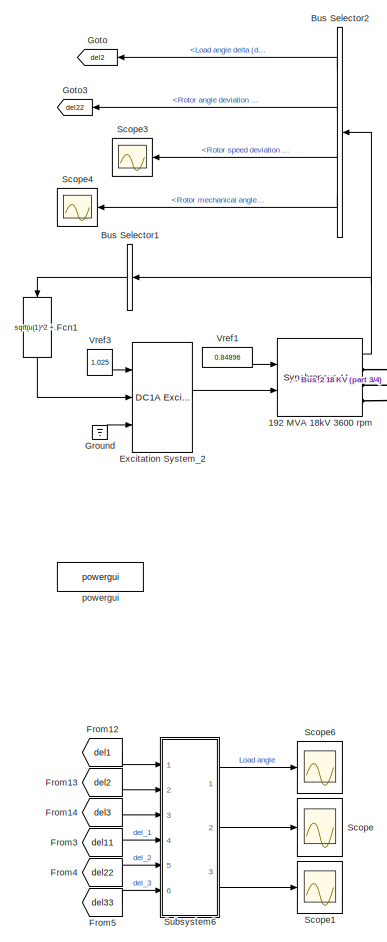
[diagram: root canvas - part 1/4, top left region]
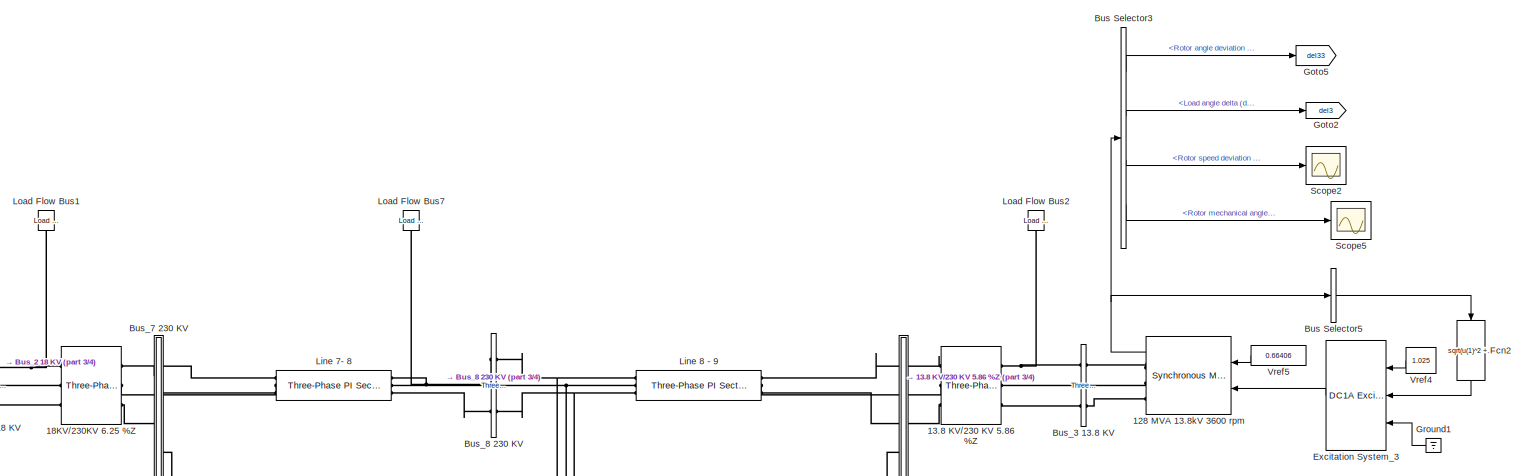
[diagram: root canvas - part 2/4, full width, top band]
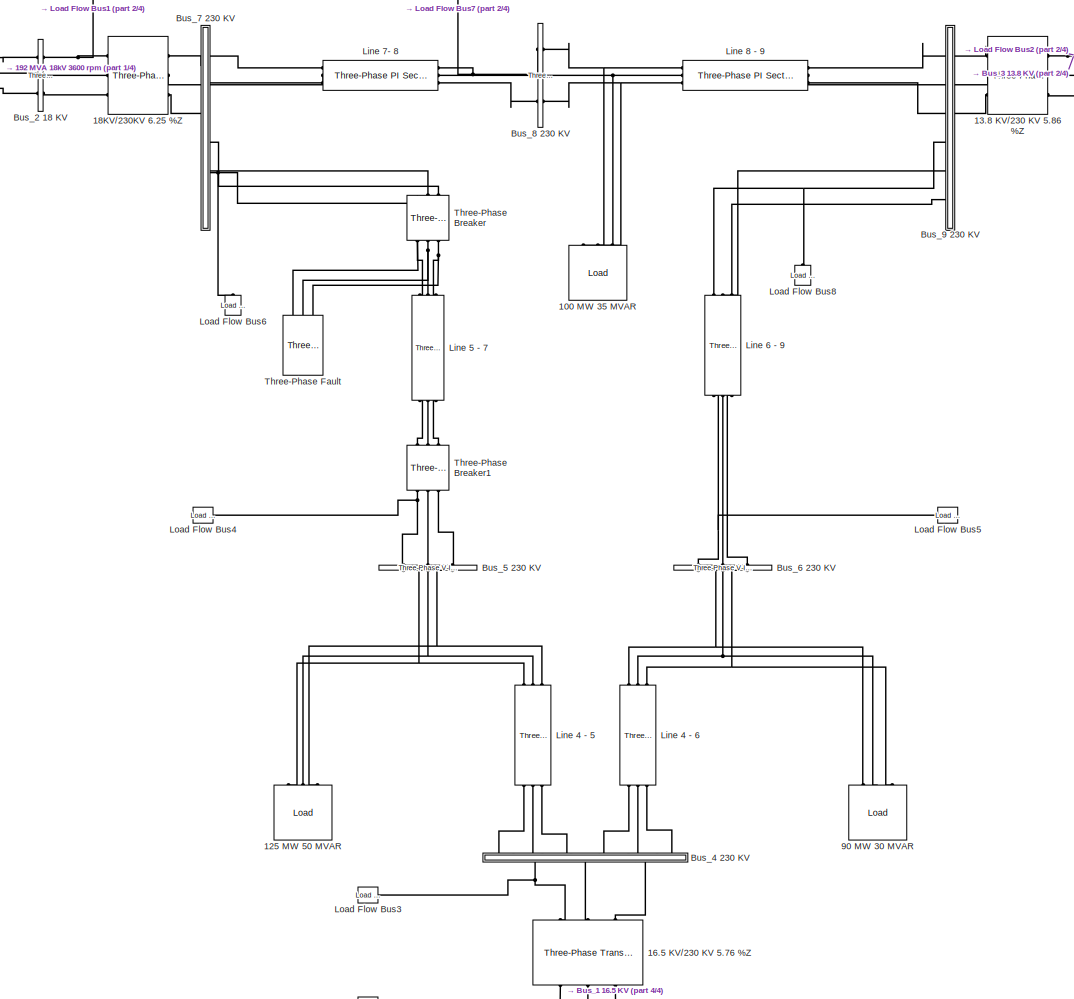
[diagram: root canvas - part 3/4, central region]
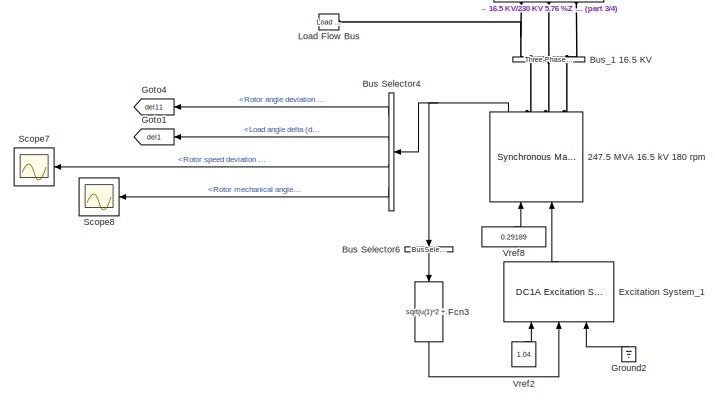
[diagram: root canvas - part 4/4, bottom center region]
MODEL slx_e1e0a8d0ff72
KIND model
CONFIG PreLoadFcn = ct = 1.083
BLOCK [Reference]  Line 4 - 6  REF=powerlib/Elements/Three-Phase
PI Section Line
  AttributesFormatString = \n
  Capacitances = [7.922e-9 4.74e-9]
  Frequency = 60
  Inductances = [ 1.29e-3  3.22e-3]
  LConnTagsString = a|b|c
  Length = 100
  Ports = [0, 0, 0, 0, 0, 3, 3]
  RConnTagsString = A|B|C
  Resistances = [ 0.08993 0.224825]
  SourceBlock = powerlib/Elements/Three-Phase\nPI Section Line
  SourceType = Three-Phase PI Section Line
BLOCK [Reference]  Line 6 - 9  REF=powerlib/Elements/Three-Phase
PI Section Line
  AttributesFormatString = \n
  Capacitances = [17.95e-9 10.55e-9]
  Frequency = 60
  Inductances = [ 2.38e-3  6.09e-3]
  LConnTagsString = a|b|c
  Length = 100
  Ports = [0, 0, 0, 0, 0, 3, 3]
  RConnTagsString = A|B|C
  Resistances = [ 0.20631 0.5157]
  SourceBlock = powerlib/Elements/Three-Phase\nPI Section Line
  SourceType = Three-Phase PI Section Line
BLOCK [Reference] 100 MW 35 MVAR  REF=jailib/Load  (lib defined in slx_75b92f426bfb)
  FunctionWithSeparateData = off
  GeneratePreprocessorConditionals = off
  Ports = [0, 0, 0, 0, 0, 3]
  ShowPortLabels = FromPortBlockName
  SourceBlock = jailib/Load
  SystemSampleTime = -1
BLOCK [Reference] 125 MW 50 MVAR  REF=jailib/Load  (lib defined in slx_75b92f426bfb)
  FunctionWithSeparateData = off
  GeneratePreprocessorConditionals = off
  Ports = [0, 0, 0, 0, 0, 3]
  ShowPortLabels = FromPortBlockName
  SourceBlock = jailib/Load
  SystemSampleTime = -1
BLOCK [Reference] 128 MVA 13.8kV 3600 rpm  REF=powerlib/Machines/Synchronous Machine
pu Standard
  BusType = PV
  InitialConditions = [0 -36.0034 0.653061 0.653061 0.653061 11.785 -108.215 131.785 1.40359]
  IterativeModel = Trapezoidal non iterative
  LoadFlowParameters = [1 85000000 0 0 0]
  Mechanical = [ 2.35  0 1 ]
  MechanicalLoad = Mechanical power Pm
  NominalParameters = [ 128e6  13.8e3   60 ]
  PLF = 0
  PolePairs = 1
  Ports = [2, 1, 0, 0, 0, 0, 3]
  Pref = 85000000
  PresetModel = No
  QLF = 0
  Qmax = Inf
  Qmin = -Inf
  Qref = 0
  Reactances1 = [ 1.68, 0.23206, 0.19, 1.61, 0.23206, 0.19, 0.314]
  Reactances2 = [ 1.305, 0.296, 0.252, 0.474,  0.243,  0.18 ]
  RotorType = Round
  Saturation = [0.6404,0.7127,0.8441,0.9214,0.9956,1.082,1.19,1.316,1.457;0.7,0.7698,0.8872,0.9466,0.9969,1.046,1.1,1.151,1.201]
  SetSaturation = off
  ShowDetailedParameters = on
  SourceBlock = powerlib/Machines/Synchronous Machine\npu Standard
  SourceType = Synchronous Machine
  StatorResistance = 1e-7
  TimeConstants1 = [ 4.4849  0.0681  0.1  ]
  TimeConstants2 = [ 5.89, 0.001,0.6, 0.001 ]
  TimeConstants3 = [  4.49  0.0681  0.0513  ]
  TimeConstants4 = [ 8.0, 0.03, 0.3371, 0.0295 ]
  TimeConstants5 = [ 1.01, 0.053, 0.1 ]
  TimeConstants6 = [ 1.3201, 0.023, 1.0, 0.07 ]
  TimeConstants7 = [  1.01  0.053  0.051266  ]
  TimeConstants8 = [ 1.3201, 0.0231, 0.3371, 0.0295 ]
  TsBlock = -1
  TsPowergui = 0
  Units = per unit standard parameters
  dAxisTimeConstants = Open-circuit
  qAxisTimeConstants = Open-circuit
BLOCK [Reference] 13.8 KV//230 KV 5.86 %Z  REF=powerlib/Elements/Three-Phase
Transformer
(Two Windings)
  BreakLoop = off
  DataFile = 'hysteresis'
  DataType = off
  Hysteresis = off
  InitialFluxes = [ 0.8 , -0.8 , 0.7 ]
  Lm = 500
  Measurements = None
  MoreParameters = off
  NominalPower = [ 100e6 , 60 ]
  Ports = [0, 0, 0, 0, 0, 3, 3]
  Rm = 500
  Saturation = [ 0,0 ; 0.0024,1.2 ; 1.0,1.52 ]
  SetInitialFlux = off
  SetSaturation = off
  SourceBlock = powerlib/Elements/Three-Phase\nTransformer\n(Two Windings)
  SourceType = Three-Phase Transformer (Two Windings)
  TransfoNumber = 1
  UNITS = pu
  Winding1 = [ 13.8e3 , 1e-6 , 0 ]
  Winding1Connection = Delta (D1)
  Winding2 = [ 230e3 , 1e-6, 0.0586 ]
  Winding2Connection = Yg
BLOCK [Reference] 16.5 KV//230 KV 5.76 %Z       REF=powerlib/Elements/Three-Phase
Transformer
(Two Windings)
  BreakLoop = off
  DataFile = 'hysteresis'
  DataType = off
  Hysteresis = off
  InitialFluxes = [ 0.8 , -0.8 , 0.7 ]
  Lm = 500
  Measurements = None
  MoreParameters = off
  NominalPower = [ 100e6 , 60 ]
  Ports = [0, 0, 0, 0, 0, 3, 3]
  Rm = 500
  Saturation = [ 0,0 ; 0.0024,1.2 ; 1.0,1.52 ]
  SetInitialFlux = off
  SetSaturation = off
  SourceBlock = powerlib/Elements/Three-Phase\nTransformer\n(Two Windings)
  SourceType = Three-Phase Transformer (Two Windings)
  TransfoNumber = 1
  UNITS = pu
  Winding1 = [ 16.5e3 , 1e-6, 0 ]
  Winding1Connection = Delta (D1)
  Winding2 = [ 230e3 ,1e-6, 0.0576 ]
  Winding2Connection = Yg
BLOCK [Reference] 18KV//230KV 6.25 %Z  REF=powerlib/Elements/Three-Phase
Transformer
(Two Windings)
  BreakLoop = off
  DataFile = 'hysteresis'
  DataType = off
  Hysteresis = off
  InitialFluxes = [ 0.8 , -0.8 , 0.7 ]
  Lm = 500
  Measurements = None
  MoreParameters = off
  NominalPower = [ 100e6 , 60 ]
  Ports = [0, 0, 0, 0, 0, 3, 3]
  Rm = 500
  Saturation = [ 0,0 ; 0.0024,1.2 ; 1.0,1.52 ]
  SetInitialFlux = off
  SetSaturation = off
  SourceBlock = powerlib/Elements/Three-Phase\nTransformer\n(Two Windings)
  SourceType = Three-Phase Transformer (Two Windings)
  TransfoNumber = 1
  UNITS = pu
  Winding1 = [ 18e3 , 1e-6 , 0]
  Winding1Connection = Delta (D1)
  Winding2 = [ 230e3 , 1e-6, 0.0625 ]
  Winding2Connection = Yg
BLOCK [Reference] 192 MVA 18kV 3600 rpm  REF=powerlib/Machines/Synchronous Machine
pu Standard
  BusType = PV
  InitialConditions = [0 -29.1799 0.828949 0.828949 0.828949 6.81655 -113.183 126.817 1.78946]
  IterativeModel = Trapezoidal non iterative
  LoadFlowParameters = [1 163000000 0 0 0]
  Mechanical = [ 3.33  0 1 ]
  MechanicalLoad = Mechanical power Pm
  NominalParameters = [ 192e6  18e3   60 ]
  PLF = 0
  PolePairs = 1
  Ports = [2, 1, 0, 0, 0, 0, 3]
  Pref = 163000000
  PresetModel = No
  QLF = 0
  Qmax = Inf
  Qmin = -Inf
  Qref = 0
  Reactances1 = [ 1.72, 0.23, 0.1728,1.65, 0.23, 0.1728, 0.4224 ]
  Reactances2 = [ 1.305, 0.296, 0.252, 0.474,  0.243,  0.18 ]
  RotorType = Round
  Saturation = [0.6404,0.7127,0.8441,0.9214,0.9956,1.082,1.19,1.316,1.457;0.7,0.7698,0.8872,0.9466,0.9969,1.046,1.1,1.151,1.201]
  SetSaturation = off
  ShowDetailedParameters = on
  SourceBlock = powerlib/Machines/Synchronous Machine\npu Standard
  SourceType = Synchronous Machine
  StatorResistance = 1e-7
  TimeConstants1 = [ 4.4849  0.0681  0.1  ]
  TimeConstants2 = [ 6, 0.001, 0.53, 0.001]
  TimeConstants3 = [  4.49  0.0681  0.0513  ]
  TimeConstants4 = [ 8.0, 0.03, 0.3371, 0.0295 ]
  TimeConstants5 = [ 1.01, 0.053, 0.1 ]
  TimeConstants6 = [ 1.3201, 0.023, 1.0, 0.07 ]
  TimeConstants7 = [  1.01  0.053  0.051266  ]
  TimeConstants8 = [ 1.3201, 0.0231, 0.3371, 0.0295 ]
  TsBlock = -1
  TsPowergui = 0
  Units = per unit standard parameters
  dAxisTimeConstants = Open-circuit
  qAxisTimeConstants = Open-circuit
BLOCK [Reference] 247.5 MVA 16.5 kV 180 rpm  REF=powerlib/Machines/Synchronous Machine
pu Standard
  AttributesFormatString = \n\n
  BusType = swing
  InitialConditions = [0 -86.3839 0.299344 0.299344 0.299344 -20.3492 -140.349 99.6508 1.08182]
  IterativeModel = Trapezoidal non iterative
  LoadFlowParameters = [2 71000000 0 0]
  Mechanical = [9.55 0 20]
  MechanicalLoad = Mechanical power Pm
  NominalParameters = [ 247.5E6  16500   60 ]
  PLF = 0
  PolePairs = 20
  Ports = [2, 1, 0, 0, 0, 0, 3]
  Pref = 150000000
  PresetModel = No
  QLF = 0
  Qmax = Inf
  Qmin = -Inf
  Qref = 0
  Reactances1 = [ 31 32 33 34 35 36 37 ]
  Reactances2 = [ 0.361, 0.1504, 0.099, 0.2398, 0.099, 0.062 ]
  RotorType = Salient-pole
  Saturation = [0.6404,0.7127,0.8441,0.9214,0.9956,1.082,1.19,1.316,1.457;0.7,0.7698,0.8872,0.9466,0.9969,1.046,1.1,1.151,1.201]
  SetSaturation = off
  ShowDetailedParameters = on
  SourceBlock = powerlib/Machines/Synchronous Machine\npu Standard
  SourceType = Synchronous Machine
  StatorResistance = 1e-7
  TimeConstants1 = [8.96 0.001 0.001]
  TimeConstants2 = []
  TimeConstants3 = []
  TimeConstants4 = []
  TimeConstants5 = [ 1.01, 0.053, 0.31 ]
  TimeConstants6 = []
  TimeConstants7 = []
  TimeConstants8 = []
  TsBlock = -1
  TsPowergui = 0
  Units = per unit standard parameters
  dAxisTimeConstants = Open-circuit
  qAxisTimeConstants = Open-circuit
BLOCK [Reference] 90 MW 30 MVAR  REF=jailib/Load  (lib defined in slx_75b92f426bfb)
  FunctionWithSeparateData = off
  GeneratePreprocessorConditionals = off
  Ports = [0, 0, 0, 0, 0, 3]
  ShowPortLabels = FromPortBlockName
  SourceBlock = jailib/Load
  SystemSampleTime = -1
BLOCK [BusSelector] Bus Selector1
  OutputAsBus = on
  OutputSignals = dq0 components.Stator voltage  vq (pu),dq0 components.Stator voltage  vd (pu)
  Ports = [1, 1]
BLOCK [BusSelector] Bus Selector2
  OutputSignals = Load angle   delta  (deg),Mechanical.Rotor angle deviation  d_theta (rad),Mechanical.Rotor speed deviation  dw (pu),Mechanical.Rotor mechanical angle  theta (deg)
  Ports = [1, 4]
BLOCK [BusSelector] Bus Selector3
  OutputSignals = Mechanical.Rotor angle deviation  d_theta (rad),Load angle   delta  (deg),Mechanical.Rotor speed deviation  dw (pu),Mechanical.Rotor mechanical angle  theta (deg)
  Ports = [1, 4]
BLOCK [BusSelector] Bus Selector4
  OutputSignals = Mechanical.Rotor angle deviation  d_theta (rad),Load angle   delta  (deg),Mechanical.Rotor speed deviation  dw (pu),Mechanical.Rotor mechanical angle  theta (deg)
  Ports = [1, 4]
BLOCK [BusSelector] Bus Selector5
  OutputAsBus = on
  OutputSignals = dq0 components.Stator voltage  vq (pu),dq0 components.Stator voltage  vd (pu)
  Ports = [1, 1]
BLOCK [BusSelector] Bus Selector6
  OutputAsBus = on
  OutputSignals = dq0 components.Stator voltage  vq (pu),dq0 components.Stator voltage  vd (pu)
  Ports = [1, 1]
BLOCK [Reference] Bus_1 16.5 KV  REF=powerlib/Measurements/Three-Phase
V-I Measurement
  CurrentMeasurement = yes
  Ipu = on
  LabelI = Iabc_1
  LabelV = Vabc_1
  OutputType = Complex
  PSBequivalent = 0
  Pbase = 100e6
  PhasorSimulation = off
  Ports = [0, 0, 0, 0, 0, 3, 3]
  SetLabelI = on
  SetLabelV = on
  SourceBlock = powerlib/Measurements/Three-Phase\nV-I Measurement
  SourceType = Three-Phase VI Measurement
  Vbase = 16.5e3
  VoltageMeasurement = phase-to-phase
  Vpu = on
  VpuLL = off
BLOCK [Reference] Bus_2 18 KV  REF=powerlib/Measurements/Three-Phase
V-I Measurement
  CurrentMeasurement = yes
  Ipu = on
  LabelI = Iabc_2
  LabelV = Vabc_2
  OutputType = Complex
  PSBequivalent = 0
  Pbase = 100e6
  PhasorSimulation = off
  Ports = [0, 0, 0, 0, 0, 3, 3]
  SetLabelI = on
  SetLabelV = on
  SourceBlock = powerlib/Measurements/Three-Phase\nV-I Measurement
  SourceType = Three-Phase VI Measurement
  Vbase = 18e3
  VoltageMeasurement = phase-to-phase
  Vpu = on
  VpuLL = off
BLOCK [Reference] Bus_3 13.8 KV  REF=powerlib/Measurements/Three-Phase
V-I Measurement
  CurrentMeasurement = yes
  Ipu = on
  LabelI = Iabc_3
  LabelV = Vabc_3
  OutputType = Complex
  PSBequivalent = 0
  Pbase = 100e6
  PhasorSimulation = off
  Ports = [0, 0, 0, 0, 0, 3, 3]
  SetLabelI = on
  SetLabelV = on
  SourceBlock = powerlib/Measurements/Three-Phase\nV-I Measurement
  SourceType = Three-Phase VI Measurement
  Vbase = 13.8e3
  VoltageMeasurement = phase-to-phase
  Vpu = on
  VpuLL = off
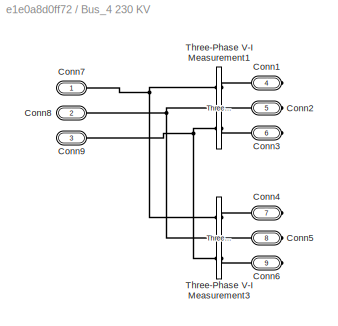
BLOCK [SubSystem] Bus_4 230 KV
  FunctionWithSeparateData = off
  MaskHideContents = off
  MinAlgLoopOccurrences = off
  Opaque = off
  Ports = [0, 0, 0, 0, 0, 3, 6]
  PropExecContextOutsideSubsystem = off
  RTWSystemCode = Auto
  RequestExecContextInheritance = off
BLOCK [PMIOPort] Bus_4 230 KV/Conn1
  Port = 4
  Side = Right
BLOCK [PMIOPort] Bus_4 230 KV/Conn2
  Port = 5
  Side = Right
BLOCK [PMIOPort] Bus_4 230 KV/Conn3
  Port = 6
  Side = Right
BLOCK [PMIOPort] Bus_4 230 KV/Conn4
  Port = 7
  Side = Right
BLOCK [PMIOPort] Bus_4 230 KV/Conn5
  Port = 8
  Side = Right
BLOCK [PMIOPort] Bus_4 230 KV/Conn6
  Port = 9
  Side = Right
BLOCK [PMIOPort] Bus_4 230 KV/Conn7
  Port = 1
  Side = Left
BLOCK [PMIOPort] Bus_4 230 KV/Conn8
  Port = 2
  Side = Left
BLOCK [PMIOPort] Bus_4 230 KV/Conn9
  Port = 3
  Side = Left
BLOCK [Reference] Bus_4 230 KV/Three-Phase V-I Measurement1  REF=powerlib/Measurements/Three-Phase
V-I Measurement
  CurrentMeasurement = yes
  Ipu = on
  LabelI = Iabc_45
  LabelV = Vabc_45
  OutputType = Complex
  PSBequivalent = 0
  Pbase = 100e6
  PhasorSimulation = off
  Ports = [0, 0, 0, 0, 0, 3, 3]
  SetLabelI = on
  SetLabelV = on
  SourceBlock = powerlib/Measurements/Three-Phase\nV-I Measurement
  SourceType = Three-Phase VI Measurement
  Vbase = 230e3
  VoltageMeasurement = phase-to-ground
  Vpu = on
  VpuLL = off
BLOCK [Reference] Bus_4 230 KV/Three-Phase V-I Measurement3  REF=powerlib/Measurements/Three-Phase
V-I Measurement
  CurrentMeasurement = yes
  Ipu = on
  LabelI = Iabc_46
  LabelV = Vabc_46
  OutputType = Complex
  PSBequivalent = 0
  Pbase = 100e6
  PhasorSimulation = off
  Ports = [0, 0, 0, 0, 0, 3, 3]
  SetLabelI = on
  SetLabelV = on
  SourceBlock = powerlib/Measurements/Three-Phase\nV-I Measurement
  SourceType = Three-Phase VI Measurement
  Vbase = 230e3
  VoltageMeasurement = phase-to-ground
  Vpu = on
  VpuLL = off
BLOCK [Reference] Bus_5 230 KV  REF=powerlib/Measurements/Three-Phase
V-I Measurement
  CurrentMeasurement = yes
  Ipu = on
  LabelI = Iabc_5
  LabelV = Vabc_5
  OutputType = Complex
  PSBequivalent = 0
  Pbase = 100e6
  PhasorSimulation = off
  Ports = [0, 0, 0, 0, 0, 3, 3]
  SetLabelI = on
  SetLabelV = on
  SourceBlock = powerlib/Measurements/Three-Phase\nV-I Measurement
  SourceType = Three-Phase VI Measurement
  Vbase = 230e3
  VoltageMeasurement = phase-to-ground
  Vpu = on
  VpuLL = off
BLOCK [Reference] Bus_6 230 KV  REF=powerlib/Measurements/Three-Phase
V-I Measurement
  CurrentMeasurement = yes
  Ipu = on
  LabelI = Iabc_6
  LabelV = Vabc_6
  OutputType = Complex
  PSBequivalent = 0
  Pbase = 100e6
  PhasorSimulation = off
  Ports = [0, 0, 0, 0, 0, 3, 3]
  SetLabelI = on
  SetLabelV = on
  SourceBlock = powerlib/Measurements/Three-Phase\nV-I Measurement
  SourceType = Three-Phase VI Measurement
  Vbase = 230e3
  VoltageMeasurement = phase-to-ground
  Vpu = on
  VpuLL = off
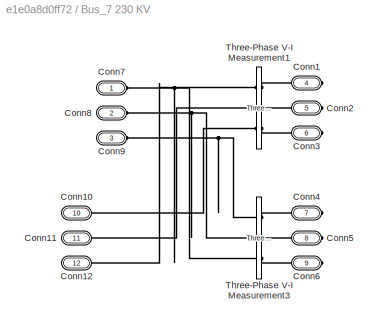
BLOCK [SubSystem] Bus_7 230 KV
  FunctionWithSeparateData = off
  MaskHideContents = off
  MinAlgLoopOccurrences = off
  Opaque = off
  Ports = [0, 0, 0, 0, 0, 6, 6]
  PropExecContextOutsideSubsystem = off
  RTWSystemCode = Auto
  RequestExecContextInheritance = off
BLOCK [PMIOPort] Bus_7 230 KV/Conn1
  Port = 4
  Side = Right
BLOCK [PMIOPort] Bus_7 230 KV/Conn10
  Port = 10
  Side = Left
BLOCK [PMIOPort] Bus_7 230 KV/Conn11
  Port = 11
  Side = Left
BLOCK [PMIOPort] Bus_7 230 KV/Conn12
  Port = 12
  Side = Left
BLOCK [PMIOPort] Bus_7 230 KV/Conn2
  Port = 5
  Side = Right
BLOCK [PMIOPort] Bus_7 230 KV/Conn3
  Port = 6
  Side = Right
BLOCK [PMIOPort] Bus_7 230 KV/Conn4
  Port = 7
  Side = Right
BLOCK [PMIOPort] Bus_7 230 KV/Conn5
  Port = 8
  Side = Right
BLOCK [PMIOPort] Bus_7 230 KV/Conn6
  Port = 9
  Side = Right
BLOCK [PMIOPort] Bus_7 230 KV/Conn7
  Port = 1
  Side = Left
BLOCK [PMIOPort] Bus_7 230 KV/Conn8
  Port = 2
  Side = Left
BLOCK [PMIOPort] Bus_7 230 KV/Conn9
  Port = 3
  Side = Left
BLOCK [Reference] Bus_7 230 KV/Three-Phase V-I Measurement1  REF=powerlib/Measurements/Three-Phase
V-I Measurement
  CurrentMeasurement = yes
  Ipu = on
  LabelI = Iabc_7
  LabelV = Vabc_7
  OutputType = Complex
  PSBequivalent = 0
  Pbase = 100e6
  PhasorSimulation = off
  Ports = [0, 0, 0, 0, 0, 3, 3]
  SetLabelI = on
  SetLabelV = on
  SourceBlock = powerlib/Measurements/Three-Phase\nV-I Measurement
  SourceType = Three-Phase VI Measurement
  Vbase = 230e3
  VoltageMeasurement = phase-to-ground
  Vpu = on
  VpuLL = off
BLOCK [Reference] Bus_7 230 KV/Three-Phase V-I Measurement3  REF=powerlib/Measurements/Three-Phase
V-I Measurement
  CurrentMeasurement = yes
  Ipu = on
  LabelI = Iab
  LabelV = Vab
  OutputType = Complex
  PSBequivalent = 0
  Pbase = 100e6
  PhasorSimulation = off
  Ports = [0, 0, 0, 0, 0, 3, 3]
  SetLabelI = on
  SetLabelV = on
  SourceBlock = powerlib/Measurements/Three-Phase\nV-I Measurement
  SourceType = Three-Phase VI Measurement
  Vbase = 230e3
  VoltageMeasurement = phase-to-ground
  Vpu = on
  VpuLL = off
BLOCK [Reference] Bus_8 230 KV  REF=powerlib/Measurements/Three-Phase
V-I Measurement
  CurrentMeasurement = yes
  Ipu = on
  LabelI = Iabc_8
  LabelV = Vabc_8
  OutputType = Complex
  PSBequivalent = 0
  Pbase = 100e6
  PhasorSimulation = off
  Ports = [0, 0, 0, 0, 0, 3, 3]
  SetLabelI = on
  SetLabelV = on
  SourceBlock = powerlib/Measurements/Three-Phase\nV-I Measurement
  SourceType = Three-Phase VI Measurement
  Vbase = 230e3
  VoltageMeasurement = phase-to-ground
  Vpu = on
  VpuLL = off
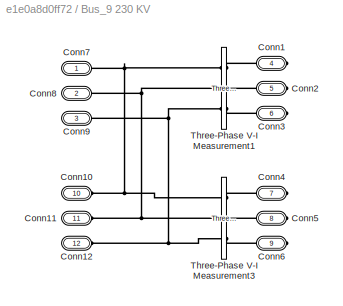
BLOCK [SubSystem] Bus_9 230 KV
  FunctionWithSeparateData = off
  MaskHideContents = off
  MinAlgLoopOccurrences = off
  Opaque = off
  Ports = [0, 0, 0, 0, 0, 6, 6]
  PropExecContextOutsideSubsystem = off
  RTWSystemCode = Auto
  RequestExecContextInheritance = off
BLOCK [PMIOPort] Bus_9 230 KV/Conn1
  Port = 4
  Side = Right
BLOCK [PMIOPort] Bus_9 230 KV/Conn10
  Port = 10
  Side = Left
BLOCK [PMIOPort] Bus_9 230 KV/Conn11
  Port = 11
  Side = Left
BLOCK [PMIOPort] Bus_9 230 KV/Conn12
  Port = 12
  Side = Left
BLOCK [PMIOPort] Bus_9 230 KV/Conn2
  Port = 5
  Side = Right
BLOCK [PMIOPort] Bus_9 230 KV/Conn3
  Port = 6
  Side = Right
BLOCK [PMIOPort] Bus_9 230 KV/Conn4
  Port = 7
  Side = Right
BLOCK [PMIOPort] Bus_9 230 KV/Conn5
  Port = 8
  Side = Right
BLOCK [PMIOPort] Bus_9 230 KV/Conn6
  Port = 9
  Side = Right
BLOCK [PMIOPort] Bus_9 230 KV/Conn7
  Port = 1
  Side = Left
BLOCK [PMIOPort] Bus_9 230 KV/Conn8
  Port = 2
  Side = Left
BLOCK [PMIOPort] Bus_9 230 KV/Conn9
  Port = 3
  Side = Left
BLOCK [Reference] Bus_9 230 KV/Three-Phase V-I Measurement1  REF=powerlib/Measurements/Three-Phase
V-I Measurement
  CurrentMeasurement = yes
  Ipu = on
  LabelI = Iabc_9
  LabelV = Vabc_9
  OutputType = Complex
  PSBequivalent = 0
  Pbase = 100e6
  PhasorSimulation = off
  Ports = [0, 0, 0, 0, 0, 3, 3]
  SetLabelI = on
  SetLabelV = on
  SourceBlock = powerlib/Measurements/Three-Phase\nV-I Measurement
  SourceType = Three-Phase VI Measurement
  Vbase = 230e3
  VoltageMeasurement = phase-to-ground
  Vpu = on
  VpuLL = off
BLOCK [Reference] Bus_9 230 KV/Three-Phase V-I Measurement3  REF=powerlib/Measurements/Three-Phase
V-I Measurement
  CurrentMeasurement = yes
  Ipu = on
  LabelI = Iabc
  LabelV = Vabc
  OutputType = Complex
  PSBequivalent = 0
  Pbase = 100e6
  PhasorSimulation = off
  Ports = [0, 0, 0, 0, 0, 3, 3]
  SetLabelI = on
  SetLabelV = on
  SourceBlock = powerlib/Measurements/Three-Phase\nV-I Measurement
  SourceType = Three-Phase VI Measurement
  Vbase = 230e3
  VoltageMeasurement = phase-to-ground
  Vpu = on
  VpuLL = off
BLOCK [Reference] Excitation System_1  REF=sps_avr/DC1A
Excitation System
  Efd12 = [3.1 2.3]
  KaTa = [20 0.2]
  KeTe = [1 0.314]
  KfTf = [0.063 0.35]
  Ports = [3, 1]
  SeEfd12 = [0.483 0.1394]
  SourceBlock = sps_avr/DC1A\nExcitation System
  SourceType = DC1A Excitation System
  TbTc = [0 0]
  Tr = 20e-3
  TsBlock = 0
  VRminmax = [ -3 3]
  v0 = [1.04 1.0818]
BLOCK [Reference] Excitation System_2  REF=sps_avr/DC1A
Excitation System
  Efd12 = [3.1 2.3]
  KaTa = [20 0.2]
  KeTe = [1 0.314]
  KfTf = [0.063 0.35]
  Ports = [3, 1]
  SeEfd12 = [0.483 0.1394]
  SourceBlock = sps_avr/DC1A\nExcitation System
  SourceType = DC1A Excitation System
  TbTc = [0 0]
  Tr = 20e-3
  TsBlock = 0
  VRminmax = [ -4 4]
  v0 = [1.025 1.7895]
BLOCK [Reference] Excitation System_3  REF=sps_avr/DC1A
Excitation System
  Efd12 = [3.1 2.3]
  KaTa = [20 0.2]
  KeTe = [1 0.314]
  KfTf = [0.063 0.35]
  Ports = [3, 1]
  SeEfd12 = [0.483 0.1394]
  SourceBlock = sps_avr/DC1A\nExcitation System
  SourceType = DC1A Excitation System
  TbTc = [0 0]
  Tr = 20e-3
  TsBlock = 0
  VRminmax = [-4 4]
  v0 = [1.025 1.4036]
BLOCK [Fcn] Fcn1
  Expr = sqrt(u(1)^2 + u(2)^2)
BLOCK [Fcn] Fcn2
  Expr = sqrt(u(1)^2 + u(2)^2)
BLOCK [Fcn] Fcn3
  Expr = sqrt(u(1)^2 + u(2)^2)
BLOCK [From] From12
  GotoTag = del1
  TagVisibility = global
BLOCK [From] From13
  GotoTag = del2
  TagVisibility = global
BLOCK [From] From14
  GotoTag = del3
  TagVisibility = global
BLOCK [From] From3
  GotoTag = del11
  TagVisibility = global
BLOCK [From] From4
  GotoTag = del22
  TagVisibility = global
BLOCK [From] From5
  GotoTag = del33
  TagVisibility = global
BLOCK [Goto] Goto
  GotoTag = del2
  TagVisibility = global
BLOCK [Goto] Goto1
  GotoTag = del1
  TagVisibility = global
BLOCK [Goto] Goto2
  GotoTag = del3
  TagVisibility = global
BLOCK [Goto] Goto3
  GotoTag = del22
  TagVisibility = global
BLOCK [Goto] Goto4
  GotoTag = del11
  TagVisibility = global
BLOCK [Goto] Goto5
  GotoTag = del33
  TagVisibility = global
BLOCK [Ground] Ground
BLOCK [Ground] Ground1
BLOCK [Ground] Ground2
BLOCK [Reference] Line 4 - 5   REF=powerlib/Elements/Three-Phase
PI Section Line
  AttributesFormatString = \n
  Capacitances = [8.82e-9 5.188e-9]
  Frequency = 60
  Inductances = [ 1.192e-3  2.38e-3]
  LConnTagsString = a|b|c
  Length = 100
  Ports = [0, 0, 0, 0, 0, 3, 3]
  RConnTagsString = A|B|C
  Resistances = [ 0.0529 0.13225]
  SourceBlock = powerlib/Elements/Three-Phase\nPI Section Line
  SourceType = Three-Phase PI Section Line
BLOCK [Reference] Line 5 - 7   REF=powerlib/Elements/Three-Phase
PI Section Line
  AttributesFormatString = \n
  Capacitances = [15.34e-9 9.025e-9]
  Frequency = 60
  Inductances = [ 2.259e-3  5.64e-3]
  LConnTagsString = a|b|c
  Length = 100
  Ports = [0, 0, 0, 0, 0, 3, 3]
  RConnTagsString = A|B|C
  Resistances = [ 0.16928 0.4232]
  SourceBlock = powerlib/Elements/Three-Phase\nPI Section Line
  SourceType = Three-Phase PI Section Line
BLOCK [Reference] Line 7- 8  REF=powerlib/Elements/Three-Phase
PI Section Line
  AttributesFormatString = \n
  Capacitances = [7.471e-9 4.394e-9]
  Frequency = 60
  Inductances = [ 1.01e-3  2.02e-3]
  LConnTagsString = a|b|c
  Length = 100
  Ports = [0, 0, 0, 0, 0, 3, 3]
  RConnTagsString = A|B|C
  Resistances = [0.044965 0.11241]
  SourceBlock = powerlib/Elements/Three-Phase\nPI Section Line
  SourceType = Three-Phase PI Section Line
BLOCK [Reference] Line 8 - 9  REF=powerlib/Elements/Three-Phase
PI Section Line
  AttributesFormatString = \n
  Capacitances = [10.47e-9 6.15e-9]
  Frequency = 60
  Inductances = [ 1.414e-3  3.53e-3]
  LConnTagsString = a|b|c
  Length = 100
  Ports = [0, 0, 0, 0, 0, 3, 3]
  RConnTagsString = A|B|C
  Resistances = [ 0.062951 0.15737]
  SourceBlock = powerlib/Elements/Three-Phase\nPI Section Line
  SourceType = Three-Phase PI Section Line
BLOCK [Reference] Load Flow Bus  REF=powerlib/Measurements/Load Flow Bus
  AttributesFormatString = %<ID>\n%<Vbase>V\n%<VLF>pu\n%<angleLF>deg.
  ID = BUS_1
  LConnTagsString = a
  Ports = [0, 0, 0, 0, 0, 1]
  SourceBlock = powerlib/Measurements/Load Flow Bus
  SourceType = Load Flow Bus
  VLF = 1.04
  Vangle = 0
  Vbase = 16.5e3
  Vref = 1.04
  angleLF = 0
BLOCK [Reference] Load Flow Bus1  REF=powerlib/Measurements/Load Flow Bus
  AttributesFormatString = %<ID>\n%<Vbase>V\n%<VLF>pu\n%<angleLF>deg.
  ID = BUS_2
  LConnTagsString = a
  Ports = [0, 0, 0, 0, 0, 1]
  SourceBlock = powerlib/Measurements/Load Flow Bus
  SourceType = Load Flow Bus
  VLF = 1.025
  Vangle = 0
  Vbase = 18e3
  Vref = 1.025
  angleLF = 9.166
BLOCK [Reference] Load Flow Bus2  REF=powerlib/Measurements/Load Flow Bus
  AttributesFormatString = %<ID>\n%<Vbase>V\n%<VLF>pu\n%<angleLF>deg.
  ID = BUS_3
  LConnTagsString = a
  Ports = [0, 0, 0, 0, 0, 1]
  SourceBlock = powerlib/Measurements/Load Flow Bus
  SourceType = Load Flow Bus
  VLF = 1.025
  Vangle = 0
  Vbase = 13.8e3
  Vref = 1.025
  angleLF = 4.553
BLOCK [Reference] Load Flow Bus3  REF=powerlib/Measurements/Load Flow Bus
  AttributesFormatString = %<ID>\n%<Vbase>V\n%<VLF>pu\n%<angleLF>deg.
  ID = BUS_4
  LConnTagsString = a
  Ports = [0, 0, 0, 0, 0, 1]
  SourceBlock = powerlib/Measurements/Load Flow Bus
  SourceType = Load Flow Bus
  VLF = 1.026
  Vangle = 0
  Vbase = 230e3
  Vref = 1
  angleLF = 27.77
BLOCK [Reference] Load Flow Bus4  REF=powerlib/Measurements/Load Flow Bus
  AttributesFormatString = %<ID>\n%<Vbase>V\n%<VLF>pu\n%<angleLF>deg.
  ID = BUS_5
  LConnTagsString = a
  Ports = [0, 0, 0, 0, 0, 1]
  SourceBlock = powerlib/Measurements/Load Flow Bus
  SourceType = Load Flow Bus
  VLF = 0.9962
  Vangle = 0
  Vbase = 230e3
  Vref = 1
  angleLF = 25.99
BLOCK [Reference] Load Flow Bus5  REF=powerlib/Measurements/Load Flow Bus
  AttributesFormatString = %<ID>\n%<Vbase>V\n%<VLF>pu\n%<angleLF>deg.
  ID = BUS_6
  LConnTagsString = a
  Ports = [0, 0, 0, 0, 0, 1]
  SourceBlock = powerlib/Measurements/Load Flow Bus
  SourceType = Load Flow Bus
  VLF = 1.013
  Vangle = 0
  Vbase = 230e3
  Vref = 1
  angleLF = 26.3
BLOCK [Reference] Load Flow Bus6  REF=powerlib/Measurements/Load Flow Bus
  AttributesFormatString = %<ID>\n%<Vbase>V\n%<VLF>pu\n%<angleLF>deg.
  ID = BUS_7
  LConnTagsString = a
  Ports = [0, 0, 0, 0, 0, 1]
  SourceBlock = powerlib/Measurements/Load Flow Bus
  SourceType = Load Flow Bus
  VLF = 1.026
  Vangle = 0
  Vbase = 230e3
  Vref = 1
  angleLF = 33.61
BLOCK [Reference] Load Flow Bus7  REF=powerlib/Measurements/Load Flow Bus
  AttributesFormatString = %<ID>\n%<Vbase>V\n%<VLF>pu\n%<angleLF>deg.
  ID = BUS_8
  LConnTagsString = a
  Ports = [0, 0, 0, 0, 0, 1]
  SourceBlock = powerlib/Measurements/Load Flow Bus
  SourceType = Load Flow Bus
  VLF = 1.016
  Vangle = 0
  Vbase = 230e3
  Vref = 1
  angleLF = 30.63
BLOCK [Reference] Load Flow Bus8  REF=powerlib/Measurements/Load Flow Bus
  AttributesFormatString = %<ID>\n%<Vbase>V\n%<VLF>pu\n%<angleLF>deg.
  ID = BUS_9
  LConnTagsString = a
  Ports = [0, 0, 0, 0, 0, 1]
  SourceBlock = powerlib/Measurements/Load Flow Bus
  SourceType = Load Flow Bus
  VLF = 1.032
  Vangle = 0
  Vbase = 230e3
  Vref = 1
  angleLF = 31.86
BLOCK [Scope] Scope
  DataFormat = StructureWithTime
  Floating = off
  LegendLocations = 0.87909     0.86917    0.099119    0.076092
  LimitDataPoints = off
  NumInputPorts = 1
  Ports = [1]
  SampleTime = 0
  ShowLegends = on
  YMax = 225
  YMin = -100
BLOCK [Scope] Scope1
  DataFormat = StructureWithTime
  Floating = off
  LimitDataPoints = off
  NumInputPorts = 1
  Ports = [1]
  SampleTime = 0
  SaveName = ScopeData1
  ShowLegends = on
  TimeRange = 3.99997
  YMax = 59.5
  YMin = 51.5
  ZoomMode = yonly
BLOCK [Scope] Scope2
  DataFormat = StructureWithTime
  Floating = off
  LegendLocations = 0.82052     0.91532     0.15739    0.029946
  LimitDataPoints = off
  NumInputPorts = 1
  Ports = [1]
  SampleTime = 0
  SaveName = ScopeData2
  ShowLegends = on
  YMax = 12.5
  YMin = -7.5
BLOCK [Scope] Scope3
  DataFormat = StructureWithTime
  Floating = off
  LimitDataPoints = off
  NumInputPorts = 1
  Ports = [1]
  SampleTime = 0
  SaveName = ScopeData3
  ShowLegends = on
  YMax = 12.5
  YMin = -7.5
BLOCK [Scope] Scope4
  DataFormat = StructureWithTime
  Floating = off
  LimitDataPoints = off
  NumInputPorts = 1
  Ports = [1]
  SampleTime = 0
  SaveName = ScopeData4
  ShowLegends = on
  YMax = 12.5
  YMin = -7.5
BLOCK [Scope] Scope5
  DataFormat = StructureWithTime
  Floating = off
  LegendLocations = 0.82052     0.91532     0.15739    0.029946
  LimitDataPoints = off
  NumInputPorts = 1
  Ports = [1]
  SampleTime = 0
  SaveName = ScopeData5
  ShowLegends = on
  YMax = 12.5
  YMin = -7.5
BLOCK [Scope] Scope6
  DataFormat = StructureWithTime
  Floating = off
  LimitDataPoints = off
  NumInputPorts = 1
  Ports = [1]
  SampleTime = 0
  SaveName = ScopeData6
  ShowLegends = on
  YMax = 200
  YMin = -200
BLOCK [Scope] Scope7
  DataFormat = StructureWithTime
  Floating = off
  LimitDataPoints = off
  NumInputPorts = 1
  Ports = [1]
  SampleTime = 0
  SaveName = ScopeData7
  ShowLegends = on
  YMax = 12.5
  YMin = -7.5
BLOCK [Scope] Scope8
  DataFormat = StructureWithTime
  Floating = off
  LimitDataPoints = off
  NumInputPorts = 1
  Ports = [1]
  SampleTime = 0
  SaveName = ScopeData8
  ShowLegends = on
  YMax = 12.5
  YMin = -7.5
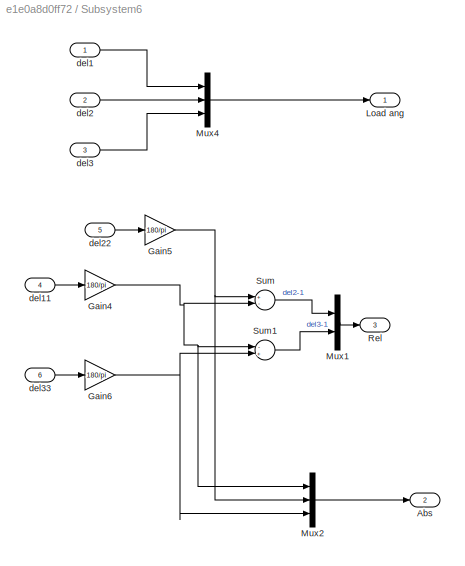
BLOCK [SubSystem] Subsystem6
  FunctionWithSeparateData = off
  MaskHideContents = off
  MinAlgLoopOccurrences = off
  Opaque = off
  Ports = [6, 3]
  PropExecContextOutsideSubsystem = off
  RTWSystemCode = Auto
  RequestExecContextInheritance = off
BLOCK [Outport] Subsystem6/Abs
  IconDisplay = Port number
  Port = 2
BLOCK [Gain] Subsystem6/Gain4
  Gain = 180/pi
  OutDataTypeStr = Inherit: Inherit via internal rule
  ParamDataTypeStr = Inherit: Inherit via internal rule
  SaturateOnIntegerOverflow = off
BLOCK [Gain] Subsystem6/Gain5
  Gain = 180/pi
  OutDataTypeStr = Inherit: Inherit via internal rule
  ParamDataTypeStr = Inherit: Inherit via internal rule
  SaturateOnIntegerOverflow = off
BLOCK [Gain] Subsystem6/Gain6
  Gain = 180/pi
  OutDataTypeStr = Inherit: Inherit via internal rule
  ParamDataTypeStr = Inherit: Inherit via internal rule
  SaturateOnIntegerOverflow = off
BLOCK [Outport] Subsystem6/Load ang
  IconDisplay = Port number
BLOCK [Mux] Subsystem6/Mux1
  DisplayOption = bar
  Inputs = 2
  Ports = [2, 1]
BLOCK [Mux] Subsystem6/Mux2
  DisplayOption = bar
  Inputs = 3
  Ports = [3, 1]
BLOCK [Mux] Subsystem6/Mux4
  DisplayOption = bar
  Inputs = 3
  Ports = [3, 1]
BLOCK [Outport] Subsystem6/Rel
  IconDisplay = Port number
  Port = 3
BLOCK [Sum] Subsystem6/Sum
  InputSameDT = off
  Inputs = +-
  OutDataTypeStr = Inherit: Inherit via internal rule
  Ports = [2, 1]
  SaturateOnIntegerOverflow = off
BLOCK [Sum] Subsystem6/Sum1
  InputSameDT = off
  Inputs = -+
  OutDataTypeStr = Inherit: Inherit via internal rule
  Ports = [2, 1]
  SaturateOnIntegerOverflow = off
BLOCK [Inport] Subsystem6/del1
  IconDisplay = Port number
BLOCK [Inport] Subsystem6/del11
  IconDisplay = Port number
  Port = 4
BLOCK [Inport] Subsystem6/del2
  IconDisplay = Port number
  Port = 2
BLOCK [Inport] Subsystem6/del22
  IconDisplay = Port number
  Port = 5
BLOCK [Inport] Subsystem6/del3
  IconDisplay = Port number
  Port = 3
BLOCK [Inport] Subsystem6/del33
  IconDisplay = Port number
  Port = 6
BLOCK [Reference] Three-Phase Breaker  REF=powerlib/Elements/Three-Phase Breaker
  BreakerResistance = 0.001
  External = off
  InitialState = closed
  Measurements = None
  Ports = [0, 0, 0, 0, 0, 3, 3]
  SnubberCapacitance = inf
  SnubberResistance = 1e7
  SourceBlock = powerlib/Elements/Three-Phase Breaker
  SourceType = Three-Phase Breaker
  SwitchA = on
  SwitchB = on
  SwitchC = on
  SwitchTimes = [ct]
BLOCK [Reference] Three-Phase Breaker1  REF=powerlib/Elements/Three-Phase Breaker
  BreakerResistance = 0.001
  External = off
  InitialState = closed
  Measurements = None
  Ports = [0, 0, 0, 0, 0, 3, 3]
  SnubberCapacitance = inf
  SnubberResistance = 1e7
  SourceBlock = powerlib/Elements/Three-Phase Breaker
  SourceType = Three-Phase Breaker
  SwitchA = on
  SwitchB = on
  SwitchC = on
  SwitchTimes = [ct]
BLOCK [Reference] Three-Phase Fault  REF=powerlib/Elements/Three-Phase Fault
  External = off
  FaultA = on
  FaultB = on
  FaultC = on
  FaultResistance = 0.001
  GroundFault = on
  GroundResistance = 0.001
  InitialStates = [0 0 1]
  Measurements = None
  Ports = [0, 0, 0, 0, 0, 3]
  SnubberCapacitance = inf
  SnubberResistance = 1e6
  SourceBlock = powerlib/Elements/Three-Phase Fault
  SourceType = Three-Phase Fault
  SwitchStatus = [1 0]
  SwitchTimes = [ 1 ct]
BLOCK [Constant] Vref1
  Value = 0.84896
BLOCK [Constant] Vref2
  Value = 1.04
BLOCK [Constant] Vref3
  Value = 1.025
BLOCK [Constant] Vref4
  Value = 1.025
BLOCK [Constant] Vref5
  Value = 0.66406
BLOCK [Constant] Vref8
  Value = 0.29189
BLOCK [Reference] powergui  REF=powerlib/powergui
  DisableRonSwitches = off
  DisableSnubberDevices = off
  DisableVfSwitches = off
  DisplayEquations = off
  DisplayStyle = 1
  EnableUseOfTLC = off
  ErrMax = 1e-05
  Frange = [0:2:500]
  FreqAxis = off
  FunctionMessages = off
  HookPort = off
  Interpol = off
  Iterations = 50
  MaxFrequency = 1000
  Pbase = 10e7
  Ports = []
  Priority = 1
  ResistiveCurrentMeasurement = off
  RestoreLinks = warning
  RmsSteady = 1
  SPID = off
  SampleTime = 5e-5
  ShowGrid = off
  SolverType = Backward Euler
  SourceBlock = powerlib/powergui
  SourceType = PSB option menu block
  StartTime = 0.0
  SwTol = 0
  Ts = 0
  UnitsV = kV
  UnitsW = MW
  UserDataPersistent = on
  Xlog = on
  Ylog = off
  ZoomFFT = off
  cycles = 1
  display = off
  echomessages = off
  frequency = 60
  frequencyindice = 60
  frequencyindicesteady = 1
  fundamental = 60
  methode = off
  save = off
  variable = ZData
  x0status = blocks
NET 128 MVA 13.8kV 3600 rpm:1 -> Bus Selector3:1, Bus Selector5:1
NET 192 MVA 18kV 3600 rpm:1 -> Bus Selector1:1, Bus Selector2:1
NET 247.5 MVA 16.5 kV 180 rpm:1 -> Bus Selector4:1, Bus Selector6:1
LINE Bus Selector1:1 -> Fcn1:1
LINE Bus Selector2:1 -> Goto:1
LINE Bus Selector2:2 -> Goto3:1
LINE Bus Selector2:3 -> Scope3:1
LINE Bus Selector2:4 -> Scope4:1
LINE Bus Selector3:1 -> Goto5:1
LINE Bus Selector3:2 -> Goto2:1
LINE Bus Selector3:3 -> Scope2:1
LINE Bus Selector3:4 -> Scope5:1
LINE Bus Selector4:1 -> Goto4:1
LINE Bus Selector4:2 -> Goto1:1
LINE Bus Selector4:3 -> Scope7:1
LINE Bus Selector4:4 -> Scope8:1
LINE Bus Selector5:1 -> Fcn2:1
LINE Bus Selector6:1 -> Fcn3:1
LINE Excitation System_1:1 -> 247.5 MVA 16.5 kV 180 rpm:2
LINE Excitation System_2:1 -> 192 MVA 18kV 3600 rpm:2
LINE Excitation System_3:1 -> 128 MVA 13.8kV 3600 rpm:2
LINE Fcn1:1 -> Excitation System_2:2
LINE Fcn2:1 -> Excitation System_3:2
LINE Fcn3:1 -> Excitation System_1:2
LINE From12:1 -> Subsystem6:1
LINE From13:1 -> Subsystem6:2
LINE From14:1 -> Subsystem6:3
LINE From3:1 -> Subsystem6:4
LINE From4:1 -> Subsystem6:5
LINE From5:1 -> Subsystem6:6
LINE Ground1:1 -> Excitation System_3:3
LINE Ground2:1 -> Excitation System_1:3
LINE Ground:1 -> Excitation System_2:3
NET Subsystem6/Gain4:1 -> Subsystem6/Mux2:1, Subsystem6/Sum1:1, Subsystem6/Sum:2
NET Subsystem6/Gain5:1 -> Subsystem6/Mux2:2, Subsystem6/Sum:1
NET Subsystem6/Gain6:1 -> Subsystem6/Mux2:3, Subsystem6/Sum1:2
LINE Subsystem6/Mux1:1 -> Subsystem6/Rel:1
LINE Subsystem6/Mux2:1 -> Subsystem6/Abs:1
LINE Subsystem6/Mux4:1 -> Subsystem6/Load ang:1
LINE Subsystem6/Sum1:1 -> Subsystem6/Mux1:2
LINE Subsystem6/Sum:1 -> Subsystem6/Mux1:1
LINE Subsystem6/del11:1 -> Subsystem6/Gain4:1
LINE Subsystem6/del1:1 -> Subsystem6/Mux4:1
LINE Subsystem6/del22:1 -> Subsystem6/Gain5:1
LINE Subsystem6/del2:1 -> Subsystem6/Mux4:2
LINE Subsystem6/del33:1 -> Subsystem6/Gain6:1
LINE Subsystem6/del3:1 -> Subsystem6/Mux4:3
LINE Subsystem6:1 -> Scope6:1
LINE Subsystem6:2 -> Scope:1
LINE Subsystem6:3 -> Scope1:1
LINE Vref1:1 -> 192 MVA 18kV 3600 rpm:1
LINE Vref2:1 -> Excitation System_1:1
LINE Vref3:1 -> Excitation System_2:1
LINE Vref4:1 -> Excitation System_3:1
LINE Vref5:1 -> 128 MVA 13.8kV 3600 rpm:1
LINE Vref8:1 -> 247.5 MVA 16.5 kV 180 rpm:1
PNET net1:  Line 4 - 6:LConn1 -- 90 MW 30 MVAR:LConn1 -- Bus_6 230 KV:RConn1
PNET net2:  Line 4 - 6:LConn2 -- 90 MW 30 MVAR:LConn2 -- Bus_6 230 KV:RConn2
PNET net3:  Line 4 - 6:LConn3 -- 90 MW 30 MVAR:LConn3 -- Bus_6 230 KV:RConn3
PLINE  Line 4 - 6:RConn1 -- Bus_4 230 KV:RConn4
PLINE  Line 4 - 6:RConn2 -- Bus_4 230 KV:RConn5
PLINE  Line 4 - 6:RConn3 -- Bus_4 230 KV:RConn6
PNET net4:  Line 6 - 9:LConn1 -- Bus_6 230 KV:LConn1 -- Load Flow Bus5:LConn1
PLINE  Line 6 - 9:LConn2 -- Bus_6 230 KV:LConn2
PLINE  Line 6 - 9:LConn3 -- Bus_6 230 KV:LConn3
PNET net5:  Line 6 - 9:RConn1 -- Bus_9 230 KV:LConn4 -- Load Flow Bus8:LConn1
PLINE  Line 6 - 9:RConn2 -- Bus_9 230 KV:LConn5
PLINE  Line 6 - 9:RConn3 -- Bus_9 230 KV:LConn6
PNET net6: 100 MW 35 MVAR:LConn1 -- Bus_8 230 KV:LConn1 -- Line 8 - 9:LConn1
PNET net7: 100 MW 35 MVAR:LConn2 -- Bus_8 230 KV:LConn2 -- Line 8 - 9:LConn2
PNET net8: 100 MW 35 MVAR:LConn3 -- Bus_8 230 KV:LConn3 -- Line 8 - 9:LConn3
PNET net9: 125 MW 50 MVAR:LConn1 -- Bus_5 230 KV:RConn1 -- Line 4 - 5 :LConn1
PNET net10: 125 MW 50 MVAR:LConn2 -- Bus_5 230 KV:RConn2 -- Line 4 - 5 :LConn2
PNET net11: 125 MW 50 MVAR:LConn3 -- Bus_5 230 KV:RConn3 -- Line 4 - 5 :LConn3
PLINE 128 MVA 13.8kV 3600 rpm:RConn1 -- Bus_3 13.8 KV:RConn1
PLINE 128 MVA 13.8kV 3600 rpm:RConn2 -- Bus_3 13.8 KV:RConn2
PLINE 128 MVA 13.8kV 3600 rpm:RConn3 -- Bus_3 13.8 KV:RConn3
PNET net12: 13.8 KV//230 KV 5.86 %Z:LConn1 -- Bus_3 13.8 KV:LConn1 -- Load Flow Bus2:LConn1
PLINE 13.8 KV//230 KV 5.86 %Z:LConn2 -- Bus_3 13.8 KV:LConn2
PLINE 13.8 KV//230 KV 5.86 %Z:LConn3 -- Bus_3 13.8 KV:LConn3
PLINE 13.8 KV//230 KV 5.86 %Z:RConn1 -- Bus_9 230 KV:RConn1
PLINE 13.8 KV//230 KV 5.86 %Z:RConn2 -- Bus_9 230 KV:RConn2
PLINE 13.8 KV//230 KV 5.86 %Z:RConn3 -- Bus_9 230 KV:RConn3
PNET net13: 16.5 KV//230 KV 5.76 %Z     :LConn1 -- Bus_1 16.5 KV:LConn1 -- Load Flow Bus:LConn1
PLINE 16.5 KV//230 KV 5.76 %Z     :LConn2 -- Bus_1 16.5 KV:LConn2
PLINE 16.5 KV//230 KV 5.76 %Z     :LConn3 -- Bus_1 16.5 KV:LConn3
PNET net14: 16.5 KV//230 KV 5.76 %Z     :RConn1 -- Bus_4 230 KV:LConn1 -- Load Flow Bus3:LConn1
PLINE 16.5 KV//230 KV 5.76 %Z     :RConn2 -- Bus_4 230 KV:LConn2
PLINE 16.5 KV//230 KV 5.76 %Z     :RConn3 -- Bus_4 230 KV:LConn3
PNET net15: 18KV//230KV 6.25 %Z:LConn1 -- Bus_2 18 KV:RConn1 -- Load Flow Bus1:LConn1
PLINE 18KV//230KV 6.25 %Z:LConn2 -- Bus_2 18 KV:RConn2
PLINE 18KV//230KV 6.25 %Z:LConn3 -- Bus_2 18 KV:RConn3
PLINE 18KV//230KV 6.25 %Z:RConn1 -- Bus_7 230 KV:LConn1
PLINE 18KV//230KV 6.25 %Z:RConn2 -- Bus_7 230 KV:LConn2
PLINE 18KV//230KV 6.25 %Z:RConn3 -- Bus_7 230 KV:LConn3
PLINE 192 MVA 18kV 3600 rpm:RConn1 -- Bus_2 18 KV:LConn1
PLINE 192 MVA 18kV 3600 rpm:RConn2 -- Bus_2 18 KV:LConn2
PLINE 192 MVA 18kV 3600 rpm:RConn3 -- Bus_2 18 KV:LConn3
PLINE 247.5 MVA 16.5 kV 180 rpm:RConn1 -- Bus_1 16.5 KV:RConn1
PLINE 247.5 MVA 16.5 kV 180 rpm:RConn2 -- Bus_1 16.5 KV:RConn2
PLINE 247.5 MVA 16.5 kV 180 rpm:RConn3 -- Bus_1 16.5 KV:RConn3
PLINE Bus_4 230 KV/Conn1:RConn1 -- Bus_4 230 KV/Three-Phase V-I Measurement1:RConn1
PLINE Bus_4 230 KV/Conn2:RConn1 -- Bus_4 230 KV/Three-Phase V-I Measurement1:RConn2
PLINE Bus_4 230 KV/Conn3:RConn1 -- Bus_4 230 KV/Three-Phase V-I Measurement1:RConn3
PLINE Bus_4 230 KV/Conn4:RConn1 -- Bus_4 230 KV/Three-Phase V-I Measurement3:RConn1
PLINE Bus_4 230 KV/Conn5:RConn1 -- Bus_4 230 KV/Three-Phase V-I Measurement3:RConn2
PLINE Bus_4 230 KV/Conn6:RConn1 -- Bus_4 230 KV/Three-Phase V-I Measurement3:RConn3
PNET net16: Bus_4 230 KV/Conn7:RConn1 -- Bus_4 230 KV/Three-Phase V-I Measurement1:LConn1 -- Bus_4 230 KV/Three-Phase V-I Measurement3:LConn1
PNET net17: Bus_4 230 KV/Conn8:RConn1 -- Bus_4 230 KV/Three-Phase V-I Measurement1:LConn2 -- Bus_4 230 KV/Three-Phase V-I Measurement3:LConn2
PNET net18: Bus_4 230 KV/Conn9:RConn1 -- Bus_4 230 KV/Three-Phase V-I Measurement1:LConn3 -- Bus_4 230 KV/Three-Phase V-I Measurement3:LConn3
PLINE Bus_4 230 KV:RConn1 -- Line 4 - 5 :RConn1
PLINE Bus_4 230 KV:RConn2 -- Line 4 - 5 :RConn2
PLINE Bus_4 230 KV:RConn3 -- Line 4 - 5 :RConn3
PNET net19: Bus_5 230 KV:LConn1 -- Load Flow Bus4:LConn1 -- Three-Phase Breaker1:RConn1
PLINE Bus_5 230 KV:LConn2 -- Three-Phase Breaker1:RConn2
PLINE Bus_5 230 KV:LConn3 -- Three-Phase Breaker1:RConn3
PNET net20: Bus_7 230 KV/Conn10:RConn1 -- Bus_7 230 KV/Conn9:RConn1 -- Bus_7 230 KV/Three-Phase V-I Measurement1:LConn3 -- Bus_7 230 KV/Three-Phase V-I Measurement3:LConn1
PNET net21: Bus_7 230 KV/Conn11:RConn1 -- Bus_7 230 KV/Conn8:RConn1 -- Bus_7 230 KV/Three-Phase V-I Measurement1:LConn2 -- Bus_7 230 KV/Three-Phase V-I Measurement3:LConn2
PNET net22: Bus_7 230 KV/Conn12:RConn1 -- Bus_7 230 KV/Conn7:RConn1 -- Bus_7 230 KV/Three-Phase V-I Measurement1:LConn1 -- Bus_7 230 KV/Three-Phase V-I Measurement3:LConn3
PLINE Bus_7 230 KV/Conn1:RConn1 -- Bus_7 230 KV/Three-Phase V-I Measurement1:RConn1
PLINE Bus_7 230 KV/Conn2:RConn1 -- Bus_7 230 KV/Three-Phase V-I Measurement1:RConn2
PLINE Bus_7 230 KV/Conn3:RConn1 -- Bus_7 230 KV/Three-Phase V-I Measurement1:RConn3
PLINE Bus_7 230 KV/Conn4:RConn1 -- Bus_7 230 KV/Three-Phase V-I Measurement3:RConn1
PLINE Bus_7 230 KV/Conn5:RConn1 -- Bus_7 230 KV/Three-Phase V-I Measurement3:RConn2
PLINE Bus_7 230 KV/Conn6:RConn1 -- Bus_7 230 KV/Three-Phase V-I Measurement3:RConn3
PLINE Bus_7 230 KV:RConn1 -- Line 7- 8:LConn1
PLINE Bus_7 230 KV:RConn2 -- Line 7- 8:LConn2
PLINE Bus_7 230 KV:RConn3 -- Line 7- 8:LConn3
PLINE Bus_7 230 KV:RConn4 -- Three-Phase Breaker:LConn3
PLINE Bus_7 230 KV:RConn5 -- Three-Phase Breaker:LConn2
PNET net23: Bus_7 230 KV:RConn6 -- Load Flow Bus6:LConn1 -- Three-Phase Breaker:LConn1
PNET net24: Bus_8 230 KV:RConn1 -- Line 7- 8:RConn1 -- Load Flow Bus7:LConn1
PLINE Bus_8 230 KV:RConn2 -- Line 7- 8:RConn2
PLINE Bus_8 230 KV:RConn3 -- Line 7- 8:RConn3
PNET net25: Bus_9 230 KV/Conn10:RConn1 -- Bus_9 230 KV/Conn7:RConn1 -- Bus_9 230 KV/Three-Phase V-I Measurement1:LConn1 -- Bus_9 230 KV/Three-Phase V-I Measurement3:LConn1
PNET net26: Bus_9 230 KV/Conn11:RConn1 -- Bus_9 230 KV/Conn8:RConn1 -- Bus_9 230 KV/Three-Phase V-I Measurement1:LConn2 -- Bus_9 230 KV/Three-Phase V-I Measurement3:LConn2
PNET net27: Bus_9 230 KV/Conn12:RConn1 -- Bus_9 230 KV/Conn9:RConn1 -- Bus_9 230 KV/Three-Phase V-I Measurement1:LConn3 -- Bus_9 230 KV/Three-Phase V-I Measurement3:LConn3
PLINE Bus_9 230 KV/Conn1:RConn1 -- Bus_9 230 KV/Three-Phase V-I Measurement1:RConn1
PLINE Bus_9 230 KV/Conn2:RConn1 -- Bus_9 230 KV/Three-Phase V-I Measurement1:RConn2
PLINE Bus_9 230 KV/Conn3:RConn1 -- Bus_9 230 KV/Three-Phase V-I Measurement1:RConn3
PLINE Bus_9 230 KV/Conn4:RConn1 -- Bus_9 230 KV/Three-Phase V-I Measurement3:RConn1
PLINE Bus_9 230 KV/Conn5:RConn1 -- Bus_9 230 KV/Three-Phase V-I Measurement3:RConn2
PLINE Bus_9 230 KV/Conn6:RConn1 -- Bus_9 230 KV/Three-Phase V-I Measurement3:RConn3
PLINE Bus_9 230 KV:LConn1 -- Line 8 - 9:RConn1
PLINE Bus_9 230 KV:LConn2 -- Line 8 - 9:RConn2
PLINE Bus_9 230 KV:LConn3 -- Line 8 - 9:RConn3
PNET net28: Line 5 - 7 :LConn1 -- Three-Phase Breaker:RConn1 -- Three-Phase Fault:LConn1
PNET net29: Line 5 - 7 :LConn2 -- Three-Phase Breaker:RConn2 -- Three-Phase Fault:LConn2
PNET net30: Line 5 - 7 :LConn3 -- Three-Phase Breaker:RConn3 -- Three-Phase Fault:LConn3
PLINE Line 5 - 7 :RConn1 -- Three-Phase Breaker1:LConn1
PLINE Line 5 - 7 :RConn2 -- Three-Phase Breaker1:LConn2
PLINE Line 5 - 7 :RConn3 -- Three-Phase Breaker1:LConn3
note: NET lines group one-source signal fan-out (src -> all destinations, sorted); 1:1 wires keep LINE; PNET lines group multi-terminal physical nets as a canonical sorted terminal list (undirected conserving connections); 2-terminal nets keep the pairwise PLINE form
